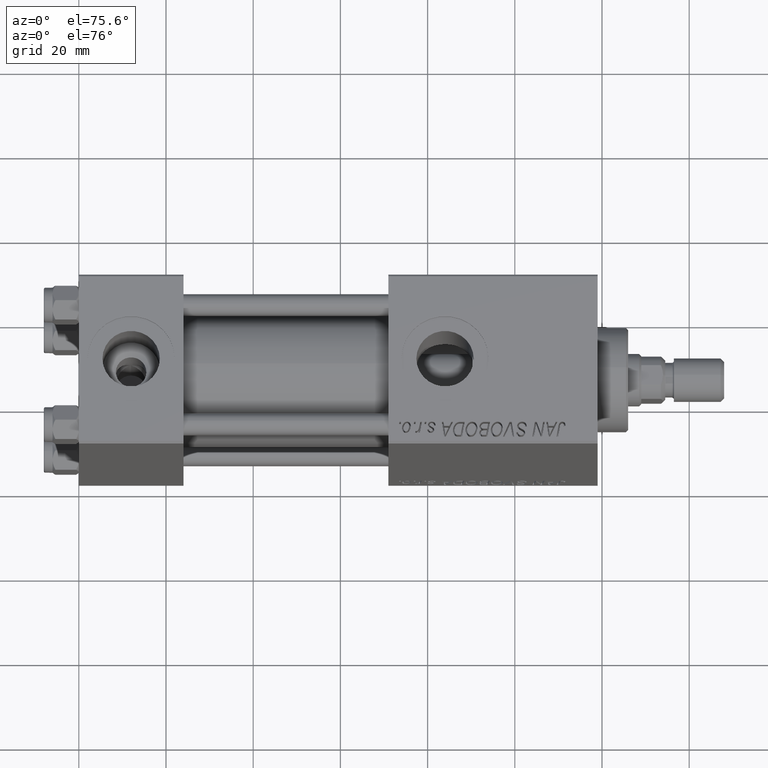
[diagram: clean part render]
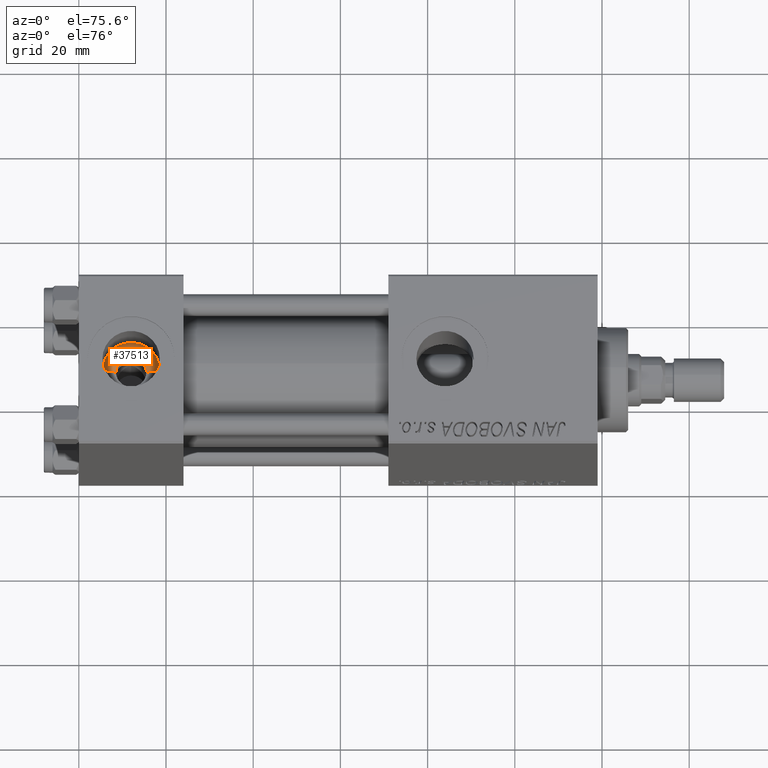
[diagram: same view with one face highlighted and labeled with its STEP entity id]
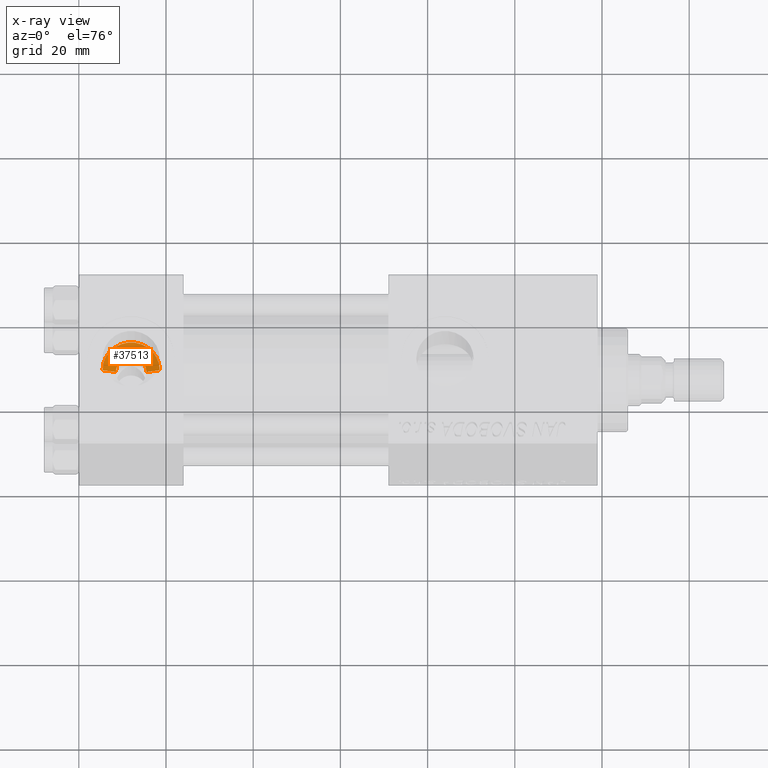
[diagram: x-ray of the same camera — body ghosted, the highlighted face saturated]
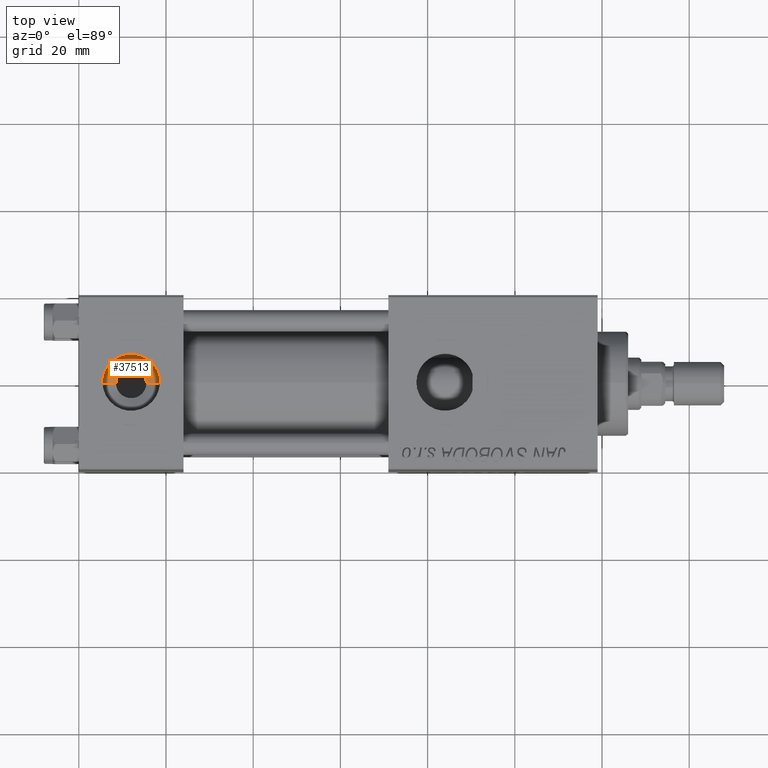
[diagram: same view with one face highlighted and labeled with its STEP entity id]
A machine part, auxiliary view. The second image highlights one B-rep face of the part: STEP entity #37513.
The next image is the same camera in x-ray: the body ghosted, the highlighted face saturated — about 0% of this face is hidden behind the body in this view.
A second angle (top view) of the same face is appended — the face is thin or edge-on in the first view.
In plain terms, the highlighted conical surface has half-angle 60.452 deg.
Its self-contained STEP definition (entity closure, byte-faithful):
#2531 = VERTEX_POINT ( 'NONE', #33769 ) ;
#8412 = VERTEX_POINT ( 'NONE', #15242 ) ;
#8515 = CIRCLE ( 'NONE', #33147, 6.579999999999999183 ) ;
#9135 = VECTOR ( 'NONE', #35356, 1000.000000000000000 ) ;
#9436 = CIRCLE ( 'NONE', #22932, 3.499999999999999556 ) ;
#13258 = CARTESIAN_POINT ( 'NONE',  ( 15.50000000000000000, 1.540743955509788682E-30, 7.419999999999996376 ) ) ;
#14448 = EDGE_LOOP ( 'NONE', ( #31310, #17507, #52645, #38715 ) ) ;
#15242 = CARTESIAN_POINT ( 'NONE',  ( 5.420000000000000817, 8.058175938389596335E-16, 9.165987261146492315 ) ) ;
#15418 = EDGE_CURVE ( 'NONE', #8412, #16465, #8515, .T. ) ;
#16465 = VERTEX_POINT ( 'NONE', #43736 ) ;
#16729 = AXIS2_PLACEMENT_3D ( 'NONE', #38729, #46724, #50702 ) ;
#17507 = ORIENTED_EDGE ( 'NONE', *, *, #46600, .F. ) ;
#18981 = DIRECTION ( 'NONE',  ( 0.8699429503561852961, 0.000000000000000000, 0.4931523731318503412 ) ) ;
#21395 = LINE ( 'NONE', #33603, #37916 ) ;
#22932 = AXIS2_PLACEMENT_3D ( 'NONE', #32650, #24691, #28150 ) ;
#24634 = DIRECTION ( 'NONE',  ( -0.000000000000000000, -0.000000000000000000, -1.000000000000000000 ) ) ;
#24691 = DIRECTION ( 'NONE',  ( 0.000000000000000000, 0.000000000000000000, 1.000000000000000000 ) ) ;
#28150 = DIRECTION ( 'NONE',  ( 1.000000000000000000, 0.000000000000000000, 0.000000000000000000 ) ) ;
#28348 = CARTESIAN_POINT ( 'NONE',  ( 12.00000000000000000, 1.540743955509788682E-30, 9.165987261146492315 ) ) ;
#31310 = ORIENTED_EDGE ( 'NONE', *, *, #50171, .F. ) ;
#32014 = CONICAL_SURFACE ( 'NONE', #16729, 3.499999999999999556, 1.055086625138361267 ) ;
#32147 = LINE ( 'NONE', #43354, #9135 ) ;
#32650 = CARTESIAN_POINT ( 'NONE',  ( 12.00000000000000000, 1.540743955509788682E-30, 7.419999999999996376 ) ) ;
#32728 = EDGE_CURVE ( 'NONE', #34444, #16465, #21395, .T. ) ;
#33147 = AXIS2_PLACEMENT_3D ( 'NONE', #28348, #24634, #49363 ) ;
#33603 = CARTESIAN_POINT ( 'NONE',  ( 15.50000000000000000, 1.540743955509788682E-30, 7.419999999999996376 ) ) ;
#33769 = CARTESIAN_POINT ( 'NONE',  ( 8.500000000000000000, 4.286263797015752865E-16, 7.419999999999996376 ) ) ;
#34444 = VERTEX_POINT ( 'NONE', #13258 ) ;
#34466 = FACE_OUTER_BOUND ( 'NONE', #14448, .T. ) ;
#35356 = DIRECTION ( 'NONE',  ( -0.8699429503561852961, 1.065372849594507103E-16, 0.4931523731318503412 ) ) ;
#37513 = ADVANCED_FACE ( 'NONE', ( #34466 ), #32014, .F. ) ;
#37916 = VECTOR ( 'NONE', #18981, 1000.000000000000000 ) ;
#38715 = ORIENTED_EDGE ( 'NONE', *, *, #15418, .F. ) ;
#38729 = CARTESIAN_POINT ( 'NONE',  ( 12.00000000000000000, 1.540743955509788682E-30, 7.419999999999996376 ) ) ;
#43354 = CARTESIAN_POINT ( 'NONE',  ( 8.500000000000000000, 4.286263797015751879E-16, 7.419999999999996376 ) ) ;
#43736 = CARTESIAN_POINT ( 'NONE',  ( 18.57999999999999829, 1.540743955509788682E-30, 9.165987261146492315 ) ) ;
#46600 = EDGE_CURVE ( 'NONE', #34444, #2531, #9436, .T. ) ;
#46724 = DIRECTION ( 'NONE',  ( 0.000000000000000000, 0.000000000000000000, 1.000000000000000000 ) ) ;
#49363 = DIRECTION ( 'NONE',  ( 1.000000000000000000, 0.000000000000000000, 0.000000000000000000 ) ) ;
#50171 = EDGE_CURVE ( 'NONE', #2531, #8412, #32147, .T. ) ;
#50702 = DIRECTION ( 'NONE',  ( 1.000000000000000000, 0.000000000000000000, 0.000000000000000000 ) ) ;
#52645 = ORIENTED_EDGE ( 'NONE', *, *, #32728, .T. ) ;